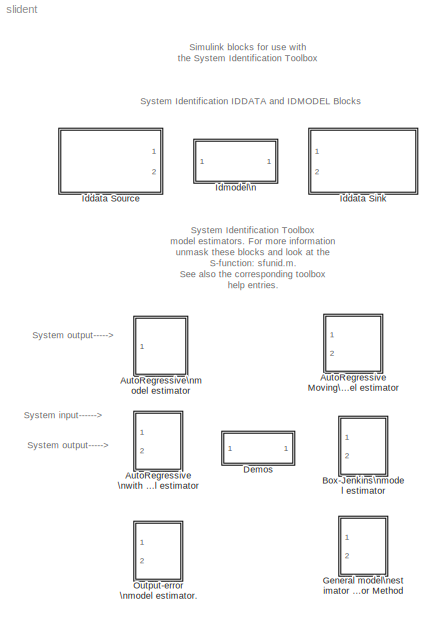
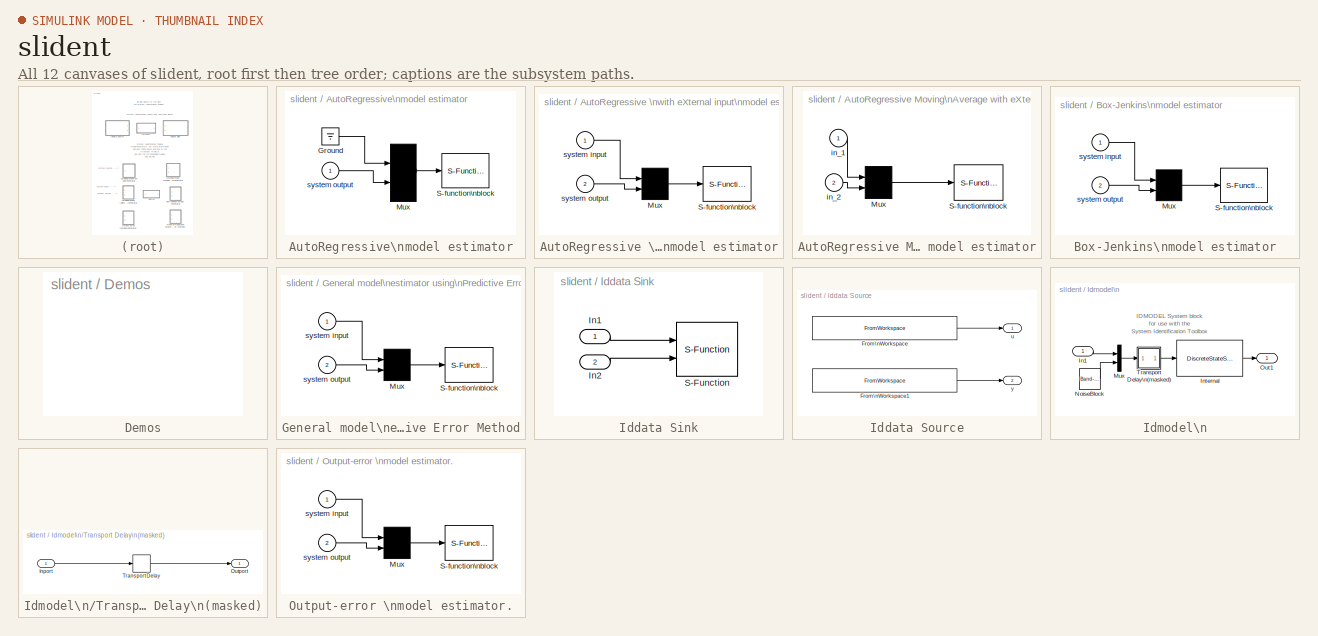
[diagram: thumbnail index - all 12 canvases of the model, root first then tree order]
MODEL slident
KIND library
BLOCK [SubSystem] AutoRegressive Moving\nAverage with eXternal\ninput model estimator
  AncestorBlock = slident2/AutoRegressive Moving\nAverage with eXternal\ninput model estimator
  MaskCallbackString = |||||
  MaskDescription = ARMAX model estimator.\nHook input 1 to system input.\nHook input 2 to system output.\nModel Name: Enter workspace variable name for resulting models.Leave empty for printout on screen.\nChoose if presented model plots should be simulation or prediction.
  MaskDisplay = disp('ARMAX')\nport_label('input',1,'u')\nport_label('input',2,'y')\n
  MaskEnableString = on,on,on,on,on,on
  MaskHelp = Hook the system's input to the first port of this block and the system's\n output to second port. \nThe estimated models are based on the latest data in the Data window. (initially padded\nwith zeros).\nThe model is reestimated at the chosen rate. <p>\n\nIf a Model Name M is entered, the variable M will contain the estimated models\nin a cell array, so that M{k,1} is the time associated with the t...<+599ch>  <repeated x5 — deduplicated; at blocks: AutoRegressive Moving\nAverage with eXternal\ni…, AutoRegressive \nwith eXternal input\nmodel est…, Box-Jenkins\nmodel estimator, General model\nestimator using\nPredictive Erro…, Output-error \nmodel estimator.>
  MaskIconFrame = on
  MaskIconOpaque = on
  MaskIconRotate = none
  MaskIconUnits = autoscale
  MaskInitialization = method='armax';\n[ts,offset,ph,mn]=slidentinit(tso,cbsim,mn);
  MaskPromptString = Orders of model [na nb nc nk]|Calculate after how many points:|Sample time:|Length of Data Window|Model Name|Simulation/Prediction
  MaskSelfModifiable = on
  MaskStyleString = edit,edit,edit,edit,edit,popup(Simulation|1 step prediction|5 step prediction|10 step prediction)
  MaskToolTipString = on,on,on,on,on,on
  MaskTunableValueString = on,on,on,on,on,on
  MaskType = ARMAX
  MaskValueString = [2 2 2 1]|25|0.05|200||Simulation
  MaskVarAliasString = ,,,,,
  MaskVariables = order=@1;HowOften=@2;tso=&3;npts=@4;mn=&5;cbsim=&6;
  MaskVisibilityString = on,on,on,on,on,on
  Ports = [2]
  TreatAsAtomicUnit = off
BLOCK [Mux] AutoRegressive Moving\nAverage with eXternal\ninput model estimator/Mux
  Inputs = 2
  Ports = [2, 1]
BLOCK [S-Function] AutoRegressive Moving\nAverage with eXternal\ninput model estimator/S-function\nblock
  DeleteFcn = sfunid([],[],[],'DeleteBlock')
  FunctionName = sfunid
  Parameters = order,npts,HowOften,offset,ts,method,mn,ph
  Ports = [1]
BLOCK [Inport] AutoRegressive Moving\nAverage with eXternal\ninput model estimator/in_1
BLOCK [Inport] AutoRegressive Moving\nAverage with eXternal\ninput model estimator/in_2
  Port = 2
BLOCK [SubSystem] AutoRegressive \nwith eXternal input\nmodel estimator
  AncestorBlock = slident2/AutoRegressive \nwith eXternal input\nmodel estimator
  MaskCallbackString = |||||
  MaskDescription = ARX model estimator.\nHook input 1 to system input.\nHook input 2 to system output.\nModel Name: Enter workspace variable name for resulting models. Leave empty for printout on screen.\nChoose if presented model plots should be simulation or prediction.
  MaskDisplay = disp('ARX')\nport_label('input',1,'u')\nport_label('input',2,'y')
  MaskEnableString = on,on,on,on,on,on
  MaskIconFrame = on
  MaskIconOpaque = on
  MaskIconRotate = none
  MaskIconUnits = autoscale
  MaskInitialization = method='arx';\n[ts,offset,ph,mn]=slidentinit(tso,cbsim,mn);
  MaskPromptString = Orders of model [na nb nk]:|How often update model (samples)|Sample time:|Length of Data window|Model Name|Simulation/Prediction
  MaskSelfModifiable = on
  MaskStyleString = edit,edit,edit,edit,edit,popup(Simulation|1 step prediction|5 step prediction|10 step prediction)
  MaskToolTipString = on,on,on,on,on,on
  MaskTunableValueString = on,on,on,on,on,on
  MaskType = ARX
  MaskValueString = [2 2 1]|25|0.05|200||Simulation
  MaskVarAliasString = ,,,,,
  MaskVariables = order=@1;HowOften=@2;tso=&3;npts=@4;mn=&5;cbsim=&6;
  MaskVisibilityString = on,on,on,on,on,on
  Ports = [2]
  TreatAsAtomicUnit = off
BLOCK [Mux] AutoRegressive \nwith eXternal input\nmodel estimator/Mux
  Inputs = 2
  Ports = [2, 1]
BLOCK [S-Function] AutoRegressive \nwith eXternal input\nmodel estimator/S-function\nblock
  DeleteFcn = sfunid([],[],[],'DeleteBlock')
  FunctionName = sfunid
  Parameters = order,npts,HowOften,offset,ts,method,mn,ph
  Ports = [1]
BLOCK [Inport] AutoRegressive \nwith eXternal input\nmodel estimator/system input
BLOCK [Inport] AutoRegressive \nwith eXternal input\nmodel estimator/system output
  Port = 2
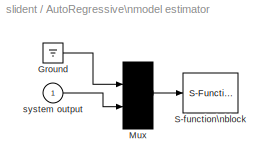
BLOCK [SubSystem] AutoRegressive\nmodel estimator
  AncestorBlock = slident2/AutoRegressive\nmodel estimator
  MaskCallbackString = |||||
  MaskDescription = Autoregressive model estimator for a scalar valued signal\nHook input 1 to the signal\nModel Name: Enter workspace variable name for resulting models.Leave empty for printout on screen.\nChoose predictionhorizon for the plots.
  MaskDisplay = disp('AR')\nport_label('input',1,'y')
  MaskEnableString = on,on,on,on,on,on
  MaskHelp = Hook the signal to the input of this block. \nThe estimated models are based on the latest data in the Data window. (initially padded\nwith zeros).\nThe model is reestimated at the chosen rate. <p>\n\nIf a Model Name M is entered, the variable M will contain the estimated models\nin a cell array, so that M{k,1} is the time associated with the the k:th model and\nM{k,2} is the actual model in IDPOL...<+597ch>
  MaskIconFrame = on
  MaskIconOpaque = on
  MaskIconRotate = none
  MaskIconUnits = autoscale
  MaskInitialization = method='ar';\n[ts,offset,ph,mn]=slidentinit(tso,cbsim,mn);
  MaskPromptString = Orders of model [na]:|How often update model (samples)|Sample time:|Length of Data Window|Model Name|Prediction horizon
  MaskSelfModifiable = on
  MaskStyleString = edit,edit,edit,edit,edit,popup(1 step prediction|5 step prediction|10 step prediction)
  MaskToolTipString = on,on,on,on,on,on
  MaskTunableValueString = on,on,on,on,on,on
  MaskType = AR
  MaskValueString = 3|25|0.05|200||1 step prediction
  MaskVarAliasString = ,,,,,
  MaskVariables = order=@1;HowOften=@2;tso=&3;npts=@4;mn=&5;cbsim=&6;
  MaskVisibilityString = on,on,on,on,on,on
  Ports = [1]
  TreatAsAtomicUnit = off
BLOCK [Ground] AutoRegressive\nmodel estimator/Ground
BLOCK [Mux] AutoRegressive\nmodel estimator/Mux
  Inputs = 2
  Ports = [2, 1]
BLOCK [S-Function] AutoRegressive\nmodel estimator/S-function\nblock
  DeleteFcn = sfunid([],[],[],'DeleteBlock')
  FunctionName = sfunid
  Parameters = order,npts,HowOften,offset,ts,method,mn,ph
  Ports = [1]
BLOCK [Inport] AutoRegressive\nmodel estimator/system output
BLOCK [SubSystem] Box-Jenkins\nmodel estimator
  AncestorBlock = slident2/Box-Jenkins\nmodel estimator
  MaskCallbackString = |||||
  MaskDescription = Box-Jenkins model estimator.\nHook input 1 to system input.\nHook input 2 to system output.\nModel Name: Enter workspace variable name for resulting models.Leave empty for printout on screen.\nChoose if presented model plots should be simulation or prediction.
  MaskDisplay = disp('BJ')\nport_label('input',1,'u')\nport_label('input',2,'y')\n
  MaskEnableString = on,on,on,on,on,on
  MaskIconFrame = on
  MaskIconOpaque = on
  MaskIconRotate = none
  MaskIconUnits = autoscale
  MaskInitialization = method='bj';\n[ts,offset,ph,mn]=slidentinit(tso,cbsim,mn);
  MaskPromptString = Orders of model [na nc nd nf nk]|Calculate after how many points:|Sample time:|Length of Data Window|Model Name|Simulation/Prediction
  MaskSelfModifiable = on
  MaskStyleString = edit,edit,edit,edit,edit,popup(Simulation|1 step prediction|5 step prediction|10 step prediction)
  MaskToolTipString = on,on,on,on,on,on
  MaskTunableValueString = on,on,on,on,on,on
  MaskType = BJ
  MaskValueString = [2 2 2 2 1]|25|0.05|200||Simulation
  MaskVarAliasString = ,,,,,
  MaskVariables = order=@1;HowOften=@2;tso=&3;npts=@4;mn=&5;cbsim=&6;
  MaskVisibilityString = on,on,on,on,on,on
  Ports = [2]
  TreatAsAtomicUnit = off
BLOCK [Mux] Box-Jenkins\nmodel estimator/Mux
  Inputs = 2
  Ports = [2, 1]
BLOCK [S-Function] Box-Jenkins\nmodel estimator/S-function\nblock
  DeleteFcn = sfunid([],[],[],'DeleteBlock')
  FunctionName = sfunid
  Parameters = order,npts,HowOften,offset,ts,method,mn,ph
  Ports = [1]
BLOCK [Inport] Box-Jenkins\nmodel estimator/system input
BLOCK [Inport] Box-Jenkins\nmodel estimator/system output
  Port = 2
BLOCK [SubSystem] Demos
  AncestorBlock = slident2/Demos
  MaskDisplay = disp('Demos')
  MaskIconFrame = on
  MaskIconOpaque = on
  MaskIconRotate = none
  MaskIconUnits = autoscale
  OpenFcn = demo toolbox
  Ports = []
  TreatAsAtomicUnit = off
BLOCK [SubSystem] General model\nestimator using\nPredictive Error Method
  AncestorBlock = slident2/General model\nestimator using\nPredictive Error Method
  MaskCallbackString = |||||
  MaskDescription = General SISO polynomial model estimator.\nHook input 1 to system input.\nHook input 2 to system output.\nModel Name: Enter workspace variable name for resulting models.Leave empty for printout on screen.\nChoose if presented model plots should be simulation or prediction. .
  MaskDisplay = disp('PEM')\nport_label('input',1,'u')\nport_label('input',2,'y')
  MaskEnableString = on,on,on,on,on,on
  MaskIconFrame = on
  MaskIconOpaque = on
  MaskIconRotate = none
  MaskIconUnits = autoscale
  MaskInitialization = method='pem';\n[ts,offset,ph,mn]=slidentinit(tso,cbsim,mn);
  MaskPromptString = Orders of model [na nb nc nd nf nk]:|Calculate after how many points:|Sample time:|Length of Data Window|Model Name|Simulation/Prediction
  MaskSelfModifiable = on
  MaskStyleString = edit,edit,edit,edit,edit,popup(Simulation|1 step prediction|5 step prediction|10 step prediction)
  MaskToolTipString = on,on,on,on,on,on
  MaskTunableValueString = on,on,on,on,on,on
  MaskType = PEM
  MaskValueString = [2 2 2 2 2 1]|25|0.05|200||Simulation
  MaskVarAliasString = ,,,,,
  MaskVariables = order=@1;HowOften=@2;tso=&3;npts=@4;mn=&5;cbsim=&6;
  MaskVisibilityString = on,on,on,on,on,on
  Ports = [2]
  TreatAsAtomicUnit = off
BLOCK [Mux] General model\nestimator using\nPredictive Error Method/Mux
  Inputs = 2
  Ports = [2, 1]
BLOCK [S-Function] General model\nestimator using\nPredictive Error Method/S-function\nblock
  DeleteFcn = sfunid([],[],[],'DeleteBlock')
  FunctionName = sfunid
  Parameters = order,npts,HowOften,offset,ts,method,mn,ph
  Ports = [1]
BLOCK [Inport] General model\nestimator using\nPredictive Error Method/system input
BLOCK [Inport] General model\nestimator using\nPredictive Error Method/system output
  Port = 2
BLOCK [SubSystem] Iddata Sink
  MaskCallbackString = |
  MaskDescription = Enter in a name of a variable for which you would like the IDDATA data object be saved.  The sample time is the rate that the data will be sampled.
  MaskDisplay = disp('IDDATA SINK')\nport_label('input',1,'Input')\nport_label('input',2,'Output')
  MaskEnableString = on,on
  MaskHelp = Enter in a name of a variable for which you would like the IDDATA data object be saved.  \n\nThe sample time is the rate that the data will be sampled.
  MaskIconFrame = on
  MaskIconOpaque = on
  MaskIconRotate = none
  MaskIconUnits = autoscale
  MaskPromptString = IDDATA Name|Sample Time (sec.)
  MaskStyleString = edit,edit
  MaskToolTipString = on,on
  MaskTunableValueString = on,on
  MaskType = IDDATA Sink
  MaskValueString = data|0.1
  MaskVarAliasString = ,
  MaskVariables = name=&1;Ts=@2;
  MaskVisibilityString = on,on
  Ports = [2]
  TreatAsAtomicUnit = off
BLOCK [Inport] Iddata Sink/In1
BLOCK [Inport] Iddata Sink/In2
  Port = 2
BLOCK [S-Function] Iddata Sink/S-Function
  FunctionName = identsink
  Parameters = name Ts
  Ports = [2]
BLOCK [SubSystem] Iddata Source
  AncestorBlock = slident/Iddata Input Output
  MaskDescription = This block allows to import IDDATA object from the main work space of Matlab.\n\nThe first output port of the block corresponds to the input signal of the IDDATA object and the second output port corresponds to the output signal.\n\nEnter an IDDATA object in the dialog field.
  MaskDisplay = disp('IDDATA SOURCE')\nport_label('output',1,'Input')\nport_label('output',2,'Output')
  MaskEnableString = on
  MaskHelp = This block allows to import IDDATA object from the main work space of Matlab.\n<p>\nThe output port of the block corresponds to the input signal of the IDDATA object.\n<p>\nEnter an IDDATA object in the dialog field.\n<p>\nUse the block IDDATA Input for the input data only.
  MaskIconFrame = on
  MaskIconOpaque = on
  MaskIconRotate = none
  MaskIconUnits = autoscale
  MaskInitialization = Ts=iddataobj.Ts;\nTimeUnit=iddataobj.TimeUnit;  if isempty(TimeUnit), TimeUnit='s'; end\nif lower(TimeUnit(1))=='m', Ts=Ts*60;\nelseif  lower(TimeUnit(1))=='h', Ts=Ts*3600;\nend
  MaskPromptString = Iddata object
  MaskStyleString = edit
  MaskToolTipString = on
  MaskTunableValueString = on
  MaskType = Iddata InputOutput
  MaskValueString = z
  MaskVariables = iddataobj=@1;
  MaskVisibilityString = on
  Ports = [0, 2]
  TreatAsAtomicUnit = off
BLOCK [FromWorkspace] Iddata Source/From\nWorkspace
  Interpolate = off
  OutputAfterFinalValue = Setting to zero
  SampleTime = Ts
  VariableName = [iddataobj.Ts*[1:1:length(iddataobj.InputData)]', iddataobj.InputData]
BLOCK [FromWorkspace] Iddata Source/From\nWorkspace1
  Interpolate = off
  OutputAfterFinalValue = Setting to zero
  SampleTime = Ts
  VariableName = [iddataobj.Ts*[1:1:length(iddataobj.OutputData)]', iddataobj.OutputData]
BLOCK [Outport] Iddata Source/u
BLOCK [Outport] Iddata Source/y
  Port = 2
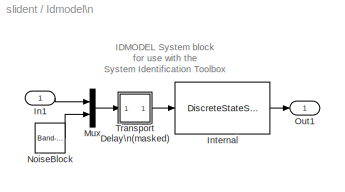
BLOCK [SubSystem] Idmodel\n
  MaskCallbackString = idmdlmask('MaskLTICallback',gcb)||idmdlmask('MaskLTICallback',gcb)|
  MaskDescription = Enter any Idmodel object (Idpoly, Idss, Idarx, Idgrey or Idproc).\nFor simulations  with noise, Seed(s) may be left empty for random restarts. \nEnter as many seeds as there are outputs for specific realizations.
  MaskDisplay = disp(sysname)
  MaskEnableString = on,on,on,on
  MaskHelp = The IDMODEL  block 	accepts any IDMODEL defined in the System Identification Toolbox: IDPOLY, IDSS,\nIDGREY, IDARX and IDPROC. <p><P>\n\nIn the editiable text box enter the name of any IDMODEL in workspace.<p><p>\n\n For IDMODELS in state-space (IDSS and IDGREY) the initial state vector may be\nspecified. Use 'z' (within quotes) or 0 for zero initial conditions, use 'm' for the\nModel's own initia...<+945ch>
  MaskIconFrame = on
  MaskIconOpaque = on
  MaskIconRotate = none
  MaskIconUnits = autoscale
  MaskInitialization = [A,B,C,D,Ts,Tdi,X0,tsn,variance,ActSeed,sysname]=idmdlmask('InitializeData',gcb,sys,IC,noi,seed);\nidmdlmask('UpdateDiagram',gcb,Ts,noi);\n\n
  MaskPromptString = idmodel variable|Initial state (state space only: 'z', 'm', or vector )|Add noise|Noise seed(s).  Default empty
  MaskSelfModifiable = on
  MaskStyleString = edit,edit,checkbox,edit
  MaskToolTipString = on,on,on,on
  MaskTunableValueString = off,on,on,on
  MaskType = Idmodel Block
  MaskValueString = idss(-1,1,1,0)|0|on|
  MaskVarAliasString = ,,,
  MaskVariables = sys=@1;IC=@2;noi=@3;seed=&4;
  MaskVisibilityString = on,on,on,on
  Ports = [1, 1]
  TreatAsAtomicUnit = off
BLOCK [Inport] Idmodel\n/In1
BLOCK [DiscreteStateSpace] Idmodel\n/Internal
  A = A
  B = B
  C = C
  D = D
  SampleTime = Ts
  X0 = X0
BLOCK [Mux] Idmodel\n/Mux
  DisplayOption = bar
  Inputs = 2
  Ports = [2, 1]
BLOCK [Reference] Idmodel\n/NoiseBlock  REF=simulink/Sources/Band-Limited\nWhite Noise
  Cov = variance
  Ports = [0, 1]
  SourceBlock = simulink/Sources/Band-Limited\nWhite Noise
  SourceType = Continuous White Noise.
  Tag = NoiseBlock
  Ts = tsn
  VectorParams1D = on
  seed = ActSeed
BLOCK [Outport] Idmodel\n/Out1
BLOCK [SubSystem] Idmodel\n/Transport Delay\n(masked)
  AncestorBlock = identextras/Transport Delay\n(masked)
  MaskCallbackString = ||
  MaskDescription = Transport Delay, with direct feedthrough when Delay Time is equal to zero.
  MaskDisplay = block_icon('Transport Delay')
  MaskEnableString = on,on,on
  MaskHelp = See Transport Delay for more information.
  MaskIconFrame = off
  MaskIconOpaque = on
  MaskIconRotate = none
  MaskIconUnits = normalized
  MaskInitialization = df = get_param(bdroot,'dirty');\niddfthru(gcb, Td, u0, bufsize);\nset_param(bdroot,'dirty',df)
  MaskPromptString = Delay Time|Initial Input|Initial Buffer Size
  MaskSelfModifiable = on
  MaskStyleString = edit,edit,edit
  MaskToolTipString = on,on,on
  MaskTunableValueString = on,on,on
  MaskType = Transport Delay (masked)
  MaskValueString = Tdi|0|1024
  MaskVarAliasString = ,,
  MaskVariables = Td=@1;u0=@2;bufsize=@3;
  MaskVisibilityString = on,on,on
  Ports = [1, 1]
  Tag = InputDelayBlock
  TreatAsAtomicUnit = off
BLOCK [Inport] Idmodel\n/Transport Delay\n(masked)/Inport
BLOCK [Outport] Idmodel\n/Transport Delay\n(masked)/Outport
BLOCK [TransportDelay] Idmodel\n/Transport Delay\n(masked)/Transport Delay
  DelayTime = 0.147909753458958
BLOCK [SubSystem] Output-error \nmodel estimator.
  AncestorBlock = slident2/Output-error \nmodel estimator.
  MaskCallbackString = |||||
  MaskDescription = Output-error model estimator.\nHook input 1 to system input.\nHook input 2 to system output.\nModel Name: Enter workspace variable name for resulting models.Leave empty for printout on screen.\nChoose if presented model plots should be simulation or prediction.
  MaskDisplay = disp('OE')\nport_label('input',1,'u')\nport_label('input',2,'y')
  MaskEnableString = on,on,on,on,on,on
  MaskIconFrame = on
  MaskIconOpaque = on
  MaskIconRotate = none
  MaskIconUnits = autoscale
  MaskInitialization = method='oe';\n[ts,offset,ph,mn]=slidentinit(tso,cbsim,mn);
  MaskPromptString = Orders of model [nb nf nk]:|How often update model|Sample time:|Length of Data Window|Model Name|Simulation/Prediction
  MaskSelfModifiable = on
  MaskStyleString = edit,edit,edit,edit,edit,popup(Simulation|1 step prediction|5 step prediction|10 step prediction)
  MaskToolTipString = on,on,on,on,on,on
  MaskTunableValueString = on,on,on,on,on,on
  MaskType = OE
  MaskValueString = [2 2 1]|25|0.05|200||Simulation
  MaskVarAliasString = ,,,,,
  MaskVariables = order=@1;HowOften=@2;tso=&3;npts=@4;mn=&5;cbsim=&6;
  MaskVisibilityString = on,on,on,on,on,on
  Ports = [2]
  TreatAsAtomicUnit = off
BLOCK [Mux] Output-error \nmodel estimator./Mux
  Inputs = 2
  Ports = [2, 1]
BLOCK [S-Function] Output-error \nmodel estimator./S-function\nblock
  DeleteFcn = sfunid([],[],[],'DeleteBlock')
  FunctionName = sfunid
  Parameters = order,npts,HowOften,offset,ts,method,mn,ph
  Ports = [1]
BLOCK [Inport] Output-error \nmodel estimator./system input
BLOCK [Inport] Output-error \nmodel estimator./system output
  Port = 2
ANNOTATION (root): Simulink blocks for use with \nthe System Identification Toolbox
ANNOTATION (root): System Identification IDDATA and IDMODEL Blocks
ANNOTATION (root): System Identification Toolbox\nmodel estimators. For more information \nunmask these blocks and look at the \nS-function: sfunid.m.\nSee also the corresponding toolbox \nhelp entries.
ANNOTATION (root): System input------>
ANNOTATION (root): System output----->
ANNOTATION Idmodel\n: IDMODEL System block\nfor use with the\nSystem Identification Toolbox
LINE AutoRegressive Moving\nAverage with eXternal\ninput model estimator/Mux:1 -> AutoRegressive Moving\nAverage with eXternal\ninput model estimator/S-function\nblock:1
LINE AutoRegressive Moving\nAverage with eXternal\ninput model estimator/in_1:1 -> AutoRegressive Moving\nAverage with eXternal\ninput model estimator/Mux:1
LINE AutoRegressive Moving\nAverage with eXternal\ninput model estimator/in_2:1 -> AutoRegressive Moving\nAverage with eXternal\ninput model estimator/Mux:2
LINE AutoRegressive \nwith eXternal input\nmodel estimator/Mux:1 -> AutoRegressive \nwith eXternal input\nmodel estimator/S-function\nblock:1
LINE AutoRegressive \nwith eXternal input\nmodel estimator/system input:1 -> AutoRegressive \nwith eXternal input\nmodel estimator/Mux:1
LINE AutoRegressive \nwith eXternal input\nmodel estimator/system output:1 -> AutoRegressive \nwith eXternal input\nmodel estimator/Mux:2
LINE AutoRegressive\nmodel estimator/Ground:1 -> AutoRegressive\nmodel estimator/Mux:1
LINE AutoRegressive\nmodel estimator/Mux:1 -> AutoRegressive\nmodel estimator/S-function\nblock:1
LINE AutoRegressive\nmodel estimator/system output:1 -> AutoRegressive\nmodel estimator/Mux:2
LINE Box-Jenkins\nmodel estimator/Mux:1 -> Box-Jenkins\nmodel estimator/S-function\nblock:1
LINE Box-Jenkins\nmodel estimator/system input:1 -> Box-Jenkins\nmodel estimator/Mux:1
LINE Box-Jenkins\nmodel estimator/system output:1 -> Box-Jenkins\nmodel estimator/Mux:2
LINE General model\nestimator using\nPredictive Error Method/Mux:1 -> General model\nestimator using\nPredictive Error Method/S-function\nblock:1
LINE General model\nestimator using\nPredictive Error Method/system input:1 -> General model\nestimator using\nPredictive Error Method/Mux:1
LINE General model\nestimator using\nPredictive Error Method/system output:1 -> General model\nestimator using\nPredictive Error Method/Mux:2
LINE Iddata Sink/In1:1 -> Iddata Sink/S-Function:1
LINE Iddata Sink/In2:1 -> Iddata Sink/S-Function:2
LINE Iddata Source/From\nWorkspace1:1 -> Iddata Source/y:1
LINE Iddata Source/From\nWorkspace:1 -> Iddata Source/u:1
LINE Idmodel\n/In1:1 -> Idmodel\n/Mux:1
LINE Idmodel\n/Internal:1 -> Idmodel\n/Out1:1
LINE Idmodel\n/Mux:1 -> Idmodel\n/Transport Delay\n(masked):1
LINE Idmodel\n/NoiseBlock:1 -> Idmodel\n/Mux:2
LINE Idmodel\n/Transport Delay\n(masked)/Inport:1 -> Idmodel\n/Transport Delay\n(masked)/Transport Delay:1
LINE Idmodel\n/Transport Delay\n(masked)/Transport Delay:1 -> Idmodel\n/Transport Delay\n(masked)/Outport:1
LINE Idmodel\n/Transport Delay\n(masked):1 -> Idmodel\n/Internal:1
LINE Output-error \nmodel estimator./Mux:1 -> Output-error \nmodel estimator./S-function\nblock:1
LINE Output-error \nmodel estimator./system input:1 -> Output-error \nmodel estimator./Mux:1
LINE Output-error \nmodel estimator./system output:1 -> Output-error \nmodel estimator./Mux:2
